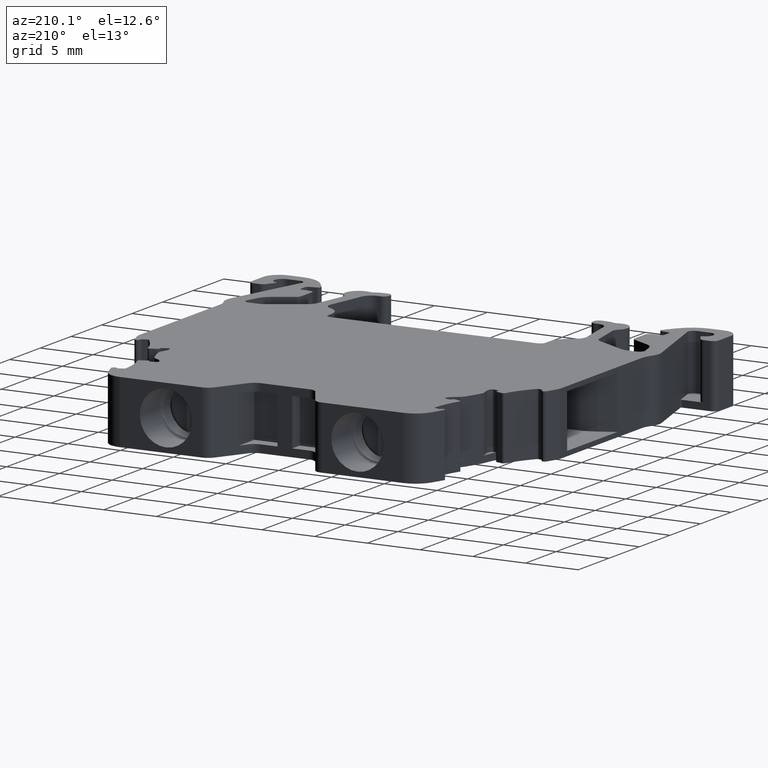
[diagram: clean part render]
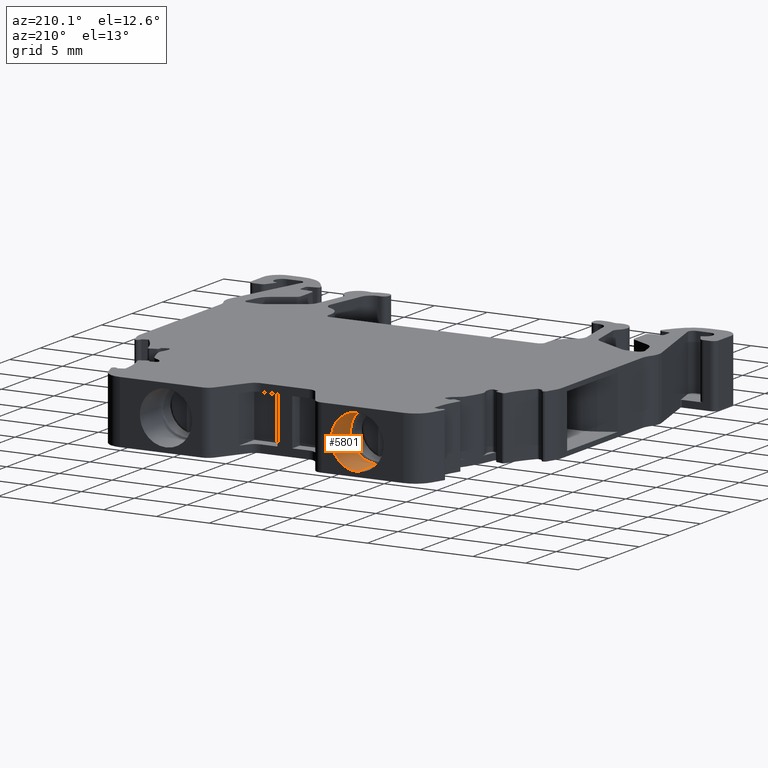
[diagram: same view with one face highlighted and labeled with its STEP entity id]
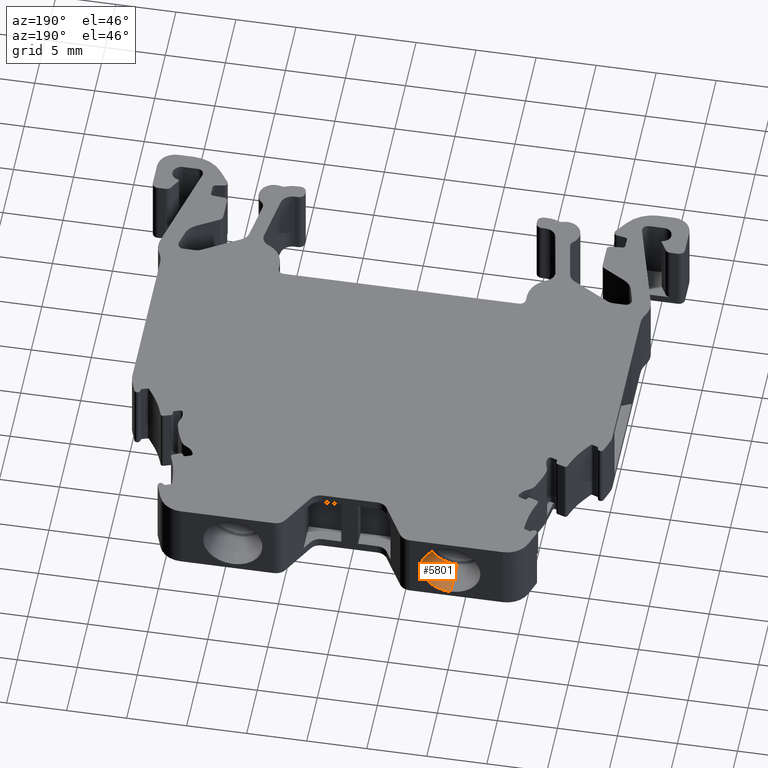
[diagram: same view with one face highlighted and labeled with its STEP entity id]
A machine part, auxiliary view. The second image highlights one B-rep face of the part: STEP entity #5801.
A second angle (auxiliary view) of the same face is appended — the face is thin or edge-on in the first view.
In plain terms, the highlighted conical surface has half-angle 0.5 deg.
Its self-contained STEP definition (entity closure, byte-faithful):
#514 = EDGE_LOOP ( 'NONE', ( #9814, #9778, #9761, #9769 ) ) ;
#1381 = CARTESIAN_POINT ( 'NONE',  ( 1451.103378640880000, 957.4726163252451000, 2.482488710350348300 ) ) ;
#1384 = CARTESIAN_POINT ( 'NONE',  ( 1451.103378640880000, 954.3505073606800100, -2.455241607942876000 ) ) ;
#1410 = CARTESIAN_POINT ( 'NONE',  ( 1451.103378640880000, 957.4726163252451000, -2.482488710350348300 ) ) ;
#1414 = CARTESIAN_POINT ( 'NONE',  ( 1451.103378640880000, 954.3505073606800100, 2.455241607942876000 ) ) ;
#2780 = DIRECTION ( 'NONE',  ( 0.0000000000000000000, 1.000000000000000000, 0.0000000000000000000 ) ) ;
#2798 = DIRECTION ( 'NONE',  ( 0.0000000000000000000, 0.0000000000000000000, 1.000000000000000000 ) ) ;
#2799 = FACE_OUTER_BOUND ( 'NONE', #514, .T. ) ;
#2809 = CARTESIAN_POINT ( 'NONE',  ( 1451.103378640880000, 957.4732708363110300, 0.0000000000000000000 ) ) ;
#2987 = AXIS2_PLACEMENT_3D ( 'NONE', #13426, #13338, #13492 ) ;
#3013 = CIRCLE ( 'NONE', #2987, 2.482488710350348300 ) ;
#3407 = EDGE_CURVE ( 'NONE', #10591, #10616, #6939, .T. ) ;
#3456 = EDGE_CURVE ( 'NONE', #10624, #10599, #13696, .T. ) ;
#4675 = EDGE_CURVE ( 'NONE', #10591, #10624, #11886, .T. ) ;
#5633 = EDGE_CURVE ( 'NONE', #10616, #10599, #3013, .T. ) ;
#5801 = ADVANCED_FACE ( 'NONE', ( #2799 ), #14512, .F. ) ;
#5982 = VECTOR ( 'NONE', #6945, 1000.000000000000000 ) ;
#6939 = LINE ( 'NONE', #6955, #5982 ) ;
#6945 = DIRECTION ( 'NONE',  ( 1.068726508035991900E-018, 0.9999619206319146900, -0.008726814202920228600 ) ) ;
#6955 = CARTESIAN_POINT ( 'NONE',  ( 1451.103378640880000, 957.4732708363110300, -2.482494422364324800 ) ) ;
#9761 = ORIENTED_EDGE ( 'NONE', *, *, #3456, .T. ) ;
#9769 = ORIENTED_EDGE ( 'NONE', *, *, #5633, .F. ) ;
#9778 = ORIENTED_EDGE ( 'NONE', *, *, #4675, .T. ) ;
#9814 = ORIENTED_EDGE ( 'NONE', *, *, #3407, .F. ) ;
#10591 = VERTEX_POINT ( 'NONE', #1384 ) ;
#10599 = VERTEX_POINT ( 'NONE', #1381 ) ;
#10616 = VERTEX_POINT ( 'NONE', #1410 ) ;
#10624 = VERTEX_POINT ( 'NONE', #1414 ) ;
#11744 = VECTOR ( 'NONE', #13713, 1000.000000000000000 ) ;
#11886 = CIRCLE ( 'NONE', #11908, 2.455241607942875200 ) ;
#11908 = AXIS2_PLACEMENT_3D ( 'NONE', #14086, #14101, #14103 ) ;
#13338 = DIRECTION ( 'NONE',  ( -0.0000000000000000000, -1.000000000000000000, -0.0000000000000000000 ) ) ;
#13426 = CARTESIAN_POINT ( 'NONE',  ( 1451.103378640880000, 957.4726163252451000, 0.0000000000000000000 ) ) ;
#13492 = DIRECTION ( 'NONE',  ( 0.0000000000000000000, 0.0000000000000000000, 1.000000000000000000 ) ) ;
#13696 = LINE ( 'NONE', #13701, #11744 ) ;
#13701 = CARTESIAN_POINT ( 'NONE',  ( 1451.103378640880000, 957.4732708363110300, 2.482494422364324800 ) ) ;
#13713 = DIRECTION ( 'NONE',  ( 0.0000000000000000000, 0.9999619206319146900, 0.008726814202920228600 ) ) ;
#14086 = CARTESIAN_POINT ( 'NONE',  ( 1451.103378640880000, 954.3505073606800100, 0.0000000000000000000 ) ) ;
#14101 = DIRECTION ( 'NONE',  ( 0.0000000000000000000, -1.000000000000000000, 0.0000000000000000000 ) ) ;
#14103 = DIRECTION ( 'NONE',  ( 0.0000000000000000000, 0.0000000000000000000, -1.000000000000000000 ) ) ;
#14512 = CONICAL_SURFACE ( 'NONE', #14513, 2.482494422364324800, 0.008726924975130900100 ) ;
#14513 = AXIS2_PLACEMENT_3D ( 'NONE', #2809, #2780, #2798 ) ;